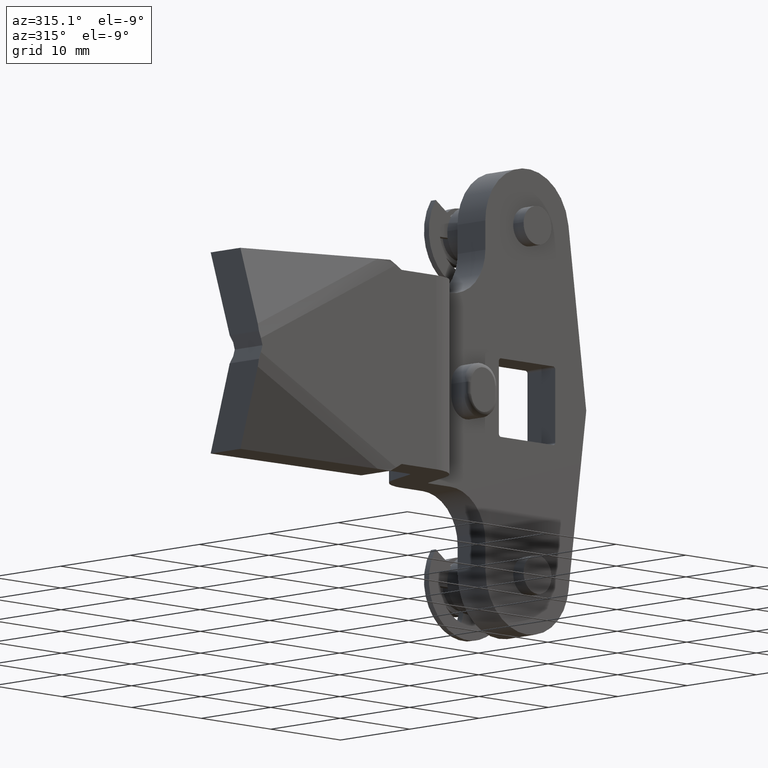
[diagram: clean part render]
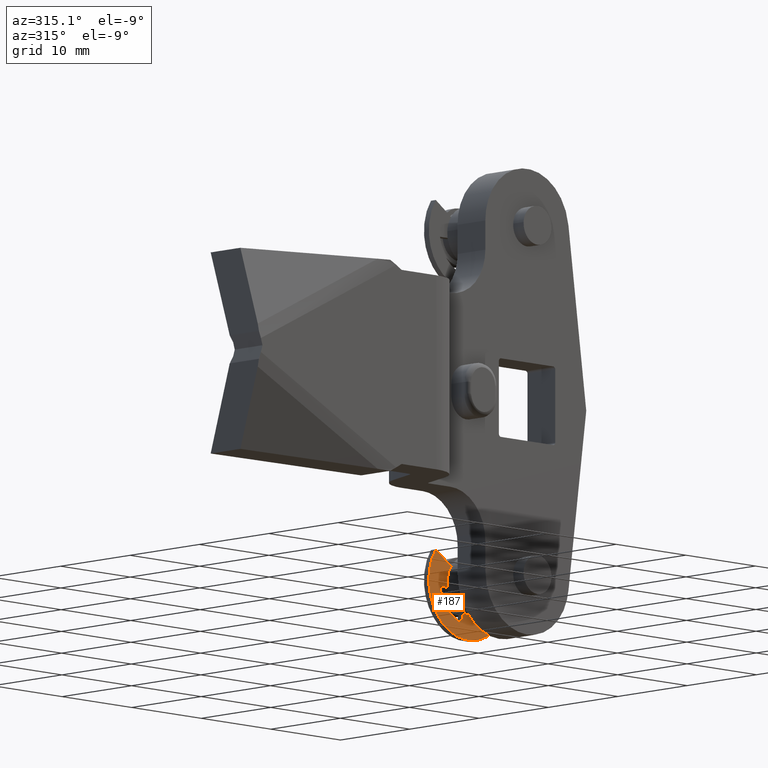
[diagram: same view with one face highlighted and labeled with its STEP entity id]
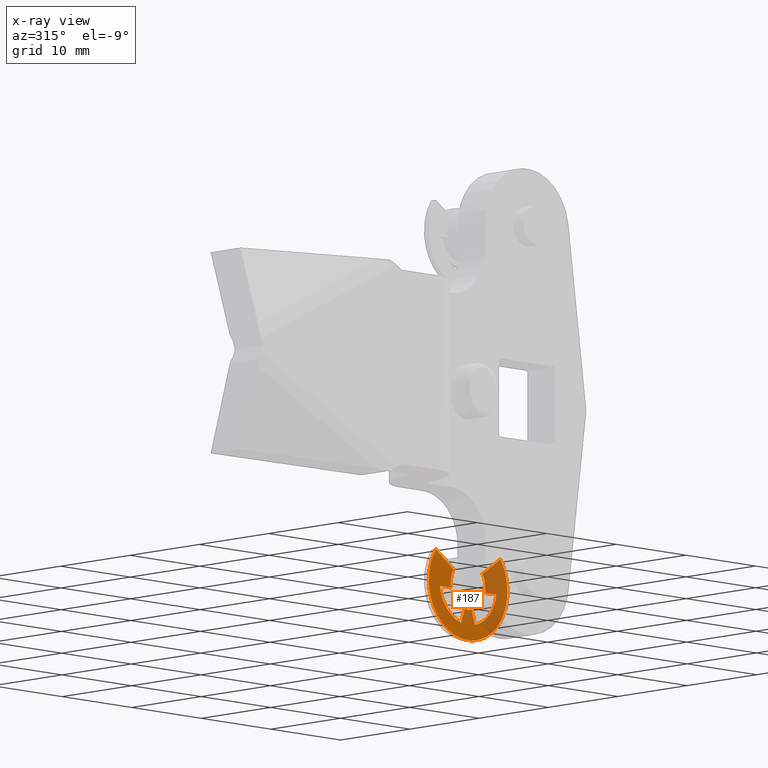
[diagram: x-ray of the same camera — body ghosted, the highlighted face saturated]
A machine part, auxiliary view. The second image highlights one B-rep face of the part: STEP entity #187.
The next image is the same camera in x-ray: the body ghosted, the highlighted face saturated — about 38% of this face is hidden behind the body in this view.
In plain terms, the highlighted face is a freeform B-spline surface patch.
Its self-contained STEP definition (entity closure, byte-faithful):
#44=CARTESIAN_POINT('',(-6.214425663374247,4.500000213738590,21.660542422035551));
#45=CARTESIAN_POINT('',(6.214425878735668,4.500000213738590,21.660542422035551));
#46=CARTESIAN_POINT('',(-6.214425663374247,4.500000213738590,11.907064469912310));
#47=CARTESIAN_POINT('',(6.214425878735668,4.500000213738590,11.907064469912310));
#48=B_SPLINE_SURFACE_WITH_KNOTS('',1,1,((#44,#46),(#45,#47)),.UNSPECIFIED.,.F.,.F.,.U.,(2,2),(2,2),(0.0,12.428851542109911),(0.0,9.753477952123239),.UNSPECIFIED.);
#49=CARTESIAN_POINT('',(-4.044209014591250,4.500000213738639,17.500001759937049));
#50=VERTEX_POINT('',#49);
#51=CARTESIAN_POINT('',(-2.449490048704035,4.500000213738639,17.500001759937000));
#52=VERTEX_POINT('',#51);
#53=CARTESIAN_POINT('',(-4.044209014591250,4.500000213738639,17.500001759937049));
#54=CARTESIAN_POINT('',(-2.449490048704035,4.500000213738639,17.500001759937000));
#55=QUASI_UNIFORM_CURVE('',1,(#53,#54),.UNSPECIFIED.,.F.,.U.);
#56=EDGE_CURVE('',#50,#52,#55,.T.);
#57=ORIENTED_EDGE('',*,*,#56,.T.);
#58=CARTESIAN_POINT('',(-2.054999662850530,4.500000213738639,19.423720272326150));
#59=VERTEX_POINT('',#58);
#60=CARTESIAN_POINT('',(-2.054999662850532,4.500000213738639,19.423720272326150));
#61=CARTESIAN_POINT('',(-2.663023118342297,4.500000213738640,18.546097911631559));
#62=CARTESIAN_POINT('',(-2.449490048704035,4.500000213738639,17.500001759937000));
#70=(BOUNDED_CURVE()B_SPLINE_CURVE(2,(#60,#61,#62),.UNSPECIFIED.,.F.,.U.)CURVE()GEOMETRIC_REPRESENTATION_ITEM()QUASI_UNIFORM_CURVE()RATIONAL_B_SPLINE_CURVE((1.0,0.919645253059910,1.0))REPRESENTATION_ITEM(''));
#71=EDGE_CURVE('',#59,#52,#70,.T.);
#72=ORIENTED_EDGE('',*,*,#71,.F.);
#73=CARTESIAN_POINT('',(-4.644300220592380,4.500000213738639,21.217606248730700));
#74=VERTEX_POINT('',#73);
#75=CARTESIAN_POINT('',(-2.054999662850530,4.500000213738639,19.423720272326150));
#76=CARTESIAN_POINT('',(-4.644300220592380,4.500000213738639,21.217606248730700));
#77=QUASI_UNIFORM_CURVE('',1,(#75,#76),.UNSPECIFIED.,.F.,.U.);
#78=EDGE_CURVE('',#59,#74,#77,.T.);
#79=ORIENTED_EDGE('',*,*,#78,.T.);
#80=CARTESIAN_POINT('',(4.644300220592550,4.500000213738639,21.217606248730899));
#81=VERTEX_POINT('',#80);
#82=CARTESIAN_POINT('',(-4.644300220592380,4.500000213738639,21.217606248730700));
#83=CARTESIAN_POINT('',(-7.498162113765769,4.500000213738638,17.098333179590860));
#84=CARTESIAN_POINT('',(-3.749081056882859,4.500000213738639,13.773076865805461));
#85=CARTESIAN_POINT('',(4.857226E-014,4.500000213738638,10.447820552020069));
#86=CARTESIAN_POINT('',(3.749081056882913,4.500000213738639,13.773076865805510));
#87=CARTESIAN_POINT('',(7.498162113765777,4.500000213738638,17.098333179590952));
#88=CARTESIAN_POINT('',(4.644300220592545,4.500000213738639,21.217606248730899));
#96=(BOUNDED_CURVE()B_SPLINE_CURVE(2,(#82,#83,#84,#85,#86,#87,#88),.UNSPECIFIED.,.F.,.U.)B_SPLINE_CURVE_WITH_KNOTS((3,2,2,3),(0.0,0.333333333333333,0.666666666666667,1.0),.UNSPECIFIED.)CURVE()GEOMETRIC_REPRESENTATION_ITEM()RATIONAL_B_SPLINE_CURVE((1.0,0.748128268515410,1.0,0.748128268515410,1.0,0.748128268515410,1.0))REPRESENTATION_ITEM(''));
#97=EDGE_CURVE('',#74,#81,#96,.T.);
#98=ORIENTED_EDGE('',*,*,#97,.T.);
#99=CARTESIAN_POINT('',(2.054999662850610,4.500000213738639,19.423720272326051));
#100=VERTEX_POINT('',#99);
#101=CARTESIAN_POINT('',(4.644300220592550,4.500000213738639,21.217606248730899));
#102=CARTESIAN_POINT('',(2.054999662850610,4.500000213738639,19.423720272326051));
#103=QUASI_UNIFORM_CURVE('',1,(#101,#102),.UNSPECIFIED.,.F.,.U.);
#104=EDGE_CURVE('',#81,#100,#103,.T.);
#105=ORIENTED_EDGE('',*,*,#104,.T.);
#106=CARTESIAN_POINT('',(2.449490048704035,4.500000213738639,17.500001759937000));
#107=VERTEX_POINT('',#106);
#108=CARTESIAN_POINT('',(2.449490048704035,4.500000213738639,17.500001759937000));
#109=CARTESIAN_POINT('',(2.663023118342283,4.500000213738639,18.546097911631488));
#110=CARTESIAN_POINT('',(2.054999662850605,4.500000213738639,19.423720272326051));
#118=(BOUNDED_CURVE()B_SPLINE_CURVE(2,(#108,#109,#110),.UNSPECIFIED.,.F.,.U.)CURVE()GEOMETRIC_REPRESENTATION_ITEM()QUASI_UNIFORM_CURVE()RATIONAL_B_SPLINE_CURVE((1.0,0.919645253059920,1.0))REPRESENTATION_ITEM(''));
#119=EDGE_CURVE('',#107,#100,#118,.T.);
#120=ORIENTED_EDGE('',*,*,#119,.F.);
#121=CARTESIAN_POINT('',(4.044209014591415,4.500000213738639,17.500001759937000));
#122=VERTEX_POINT('',#121);
#123=CARTESIAN_POINT('',(2.449490048704035,4.500000213738639,17.500001759937000));
#124=CARTESIAN_POINT('',(4.044209014591415,4.500000213738639,17.500001759937000));
#125=QUASI_UNIFORM_CURVE('',1,(#123,#124),.UNSPECIFIED.,.F.,.U.);
#126=EDGE_CURVE('',#107,#122,#125,.T.);
#127=ORIENTED_EDGE('',*,*,#126,.T.);
#128=CARTESIAN_POINT('',(0.991020710642079,4.500000213738639,14.047343876842740));
#129=VERTEX_POINT('',#128);
#130=CARTESIAN_POINT('',(0.991020710642081,4.500000213738639,14.047343876842730));
#131=CARTESIAN_POINT('',(3.701358912858660,4.500000213738639,14.726886947491716));
#132=CARTESIAN_POINT('',(4.044209014591415,4.500000213738639,17.500001759937000));
#140=(BOUNDED_CURVE()B_SPLINE_CURVE(2,(#130,#131,#132),.UNSPECIFIED.,.F.,.U.)CURVE()GEOMETRIC_REPRESENTATION_ITEM()QUASI_UNIFORM_CURVE()RATIONAL_B_SPLINE_CURVE((1.0,0.824734281246298,1.0))REPRESENTATION_ITEM(''));
#141=EDGE_CURVE('',#129,#122,#140,.T.);
#142=ORIENTED_EDGE('',*,*,#141,.F.);
#143=CARTESIAN_POINT('',(0.500000308161380,4.500000213738639,15.550511053881950));
#144=VERTEX_POINT('',#143);
#145=CARTESIAN_POINT('',(0.991020710642079,4.500000213738639,14.047343876842740));
#146=CARTESIAN_POINT('',(0.500000308161380,4.500000213738639,15.550511053881950));
#147=QUASI_UNIFORM_CURVE('',1,(#145,#146),.UNSPECIFIED.,.F.,.U.);
#148=EDGE_CURVE('',#129,#144,#147,.T.);
#149=ORIENTED_EDGE('',*,*,#148,.T.);
#150=CARTESIAN_POINT('',(-0.500000308161436,4.500000213738639,15.550511053881950));
#151=VERTEX_POINT('',#150);
#152=CARTESIAN_POINT('',(-0.500000308161436,4.500000213738639,15.550511053881950));
#153=CARTESIAN_POINT('',(-2.840610E-014,4.500000213738639,15.448448857888279));
#154=CARTESIAN_POINT('',(0.500000308161382,4.500000213738639,15.550511053881941));
#162=(BOUNDED_CURVE()B_SPLINE_CURVE(2,(#152,#153,#154),.UNSPECIFIED.,.F.,.U.)CURVE()GEOMETRIC_REPRESENTATION_ITEM()QUASI_UNIFORM_CURVE()RATIONAL_B_SPLINE_CURVE((1.0,0.979795873891067,1.0))REPRESENTATION_ITEM(''));
#163=EDGE_CURVE('',#151,#144,#162,.T.);
#164=ORIENTED_EDGE('',*,*,#163,.F.);
#165=CARTESIAN_POINT('',(-0.991020710642175,4.500000213738639,14.047343876842520));
#166=VERTEX_POINT('',#165);
#167=CARTESIAN_POINT('',(-0.500000308161436,4.500000213738639,15.550511053881950));
#168=CARTESIAN_POINT('',(-0.991020710642175,4.500000213738639,14.047343876842520));
#169=QUASI_UNIFORM_CURVE('',1,(#167,#168),.UNSPECIFIED.,.F.,.U.);
#170=EDGE_CURVE('',#151,#166,#169,.T.);
#171=ORIENTED_EDGE('',*,*,#170,.T.);
#172=CARTESIAN_POINT('',(-4.044209014591250,4.500000213738639,17.500001759937049));
#173=CARTESIAN_POINT('',(-3.701358912858681,4.500000213738638,14.726886947491749));
#174=CARTESIAN_POINT('',(-0.991020710642175,4.500000213738639,14.047343876842520));
#182=(BOUNDED_CURVE()B_SPLINE_CURVE(2,(#172,#173,#174),.UNSPECIFIED.,.F.,.U.)CURVE()GEOMETRIC_REPRESENTATION_ITEM()QUASI_UNIFORM_CURVE()RATIONAL_B_SPLINE_CURVE((1.0,0.824734281246298,1.0))REPRESENTATION_ITEM(''));
#183=EDGE_CURVE('',#50,#166,#182,.T.);
#184=ORIENTED_EDGE('',*,*,#183,.F.);
#185=EDGE_LOOP('',(#57,#72,#79,#98,#105,#120,#127,#142,#149,#164,#171,#184));
#186=FACE_OUTER_BOUND('',#185,.T.);
#187=ADVANCED_FACE('',(#186),#48,.F.);